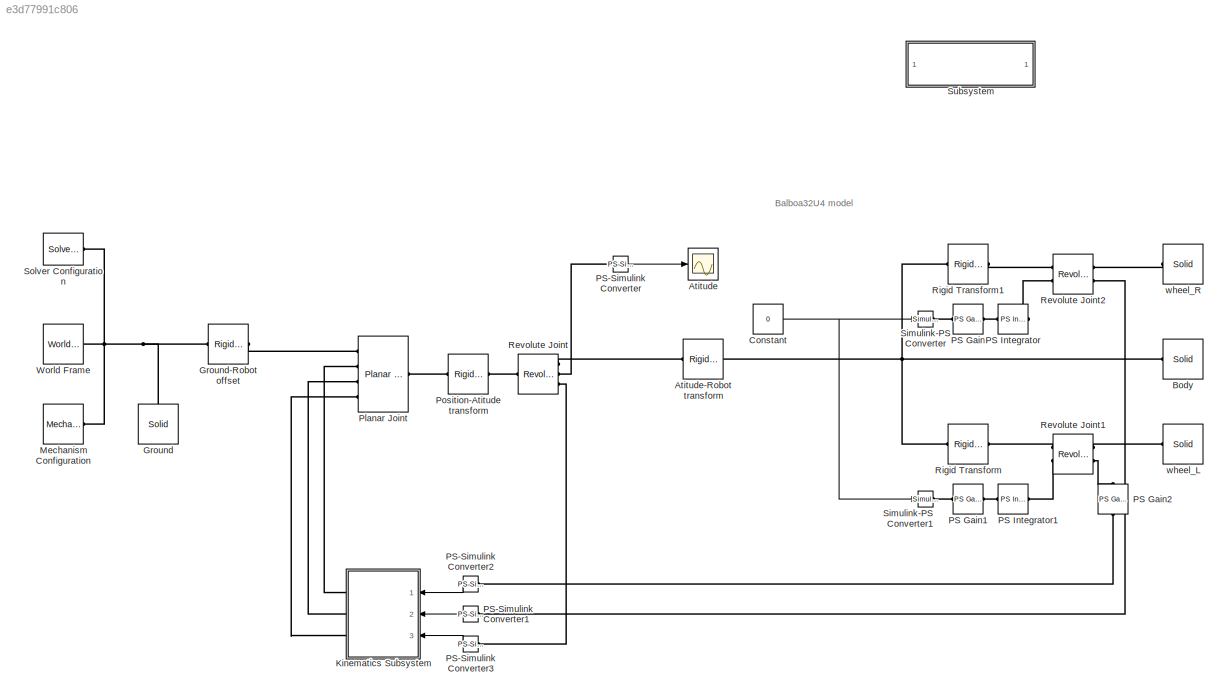
MODEL slx_e3d77991c806
KIND model
CONFIG AbsTol = auto
CONFIG EnableMultiTasking = on
CONFIG FixedStep = auto
CONFIG MaxStep = 0.001
CONFIG MinStep = auto
CONFIG RelTol = 1e-3
CONFIG SampleTimeConstraint = Unconstrained
CONFIG Solver = ode15s
CONFIG SolverName = ode15s
CONFIG StartTime = 0.0
CONFIG StopTime = 20
BLOCK [Scope] Atitude
  Floating = off
  NumInputPorts = 1
  Ports = [1]
  ScopeSpecificationString = Simulink.scopes.TimeScopeBlockCfg('CurrentConfiguration', extmgr.ConfigurationSet(extmgr.Configuration('Core','General UI',true),extmgr.Configuration('Core','Source UI',true),extmgr.Configuration('Sources','WiredSimulink',true,'DataLoggingVariableName','ScopeData2'),extmgr.Configuration('Visuals','Time Domain',true,'SerializedDisplays',{struct('MinYLimReal','-134.45235','MaxYLimReal','1210.07116',...<+1398ch>
BLOCK [Reference] Atitude-Robot transform  REF=sm_lib/Frames and
Transforms/Rigid
Transform
  Ports = [0, 0, 0, 0, 0, 1, 1]
  SourceBlock = sm_lib/Frames and\nTransforms/Rigid\nTransform
  SourceProductBaseCode = MS
  SourceProductName = Simscape Multibody
  SourceType = Rigid\nTransform
BLOCK [Reference] Body  REF=sm_lib/Body Elements/Solid
  Ports = [0, 0, 0, 0, 0, 0, 1]
  SourceBlock = sm_lib/Body Elements/Solid
  SourceProductBaseCode = MS
  SourceProductName = Simscape Multibody
  SourceType = Solid
BLOCK [Constant] Constant
  Value = 0
BLOCK [Reference] Ground  REF=sm_lib/Body Elements/Solid
  Ports = [0, 0, 0, 0, 0, 0, 1]
  SourceBlock = sm_lib/Body Elements/Solid
  SourceProductBaseCode = MS
  SourceProductName = Simscape Multibody
  SourceType = Solid
BLOCK [Reference] Ground-Robot offset  REF=sm_lib/Frames and
Transforms/Rigid
Transform
  Ports = [0, 0, 0, 0, 0, 1, 1]
  SourceBlock = sm_lib/Frames and\nTransforms/Rigid\nTransform
  SourceProductBaseCode = MS
  SourceProductName = Simscape Multibody
  SourceType = Rigid\nTransform
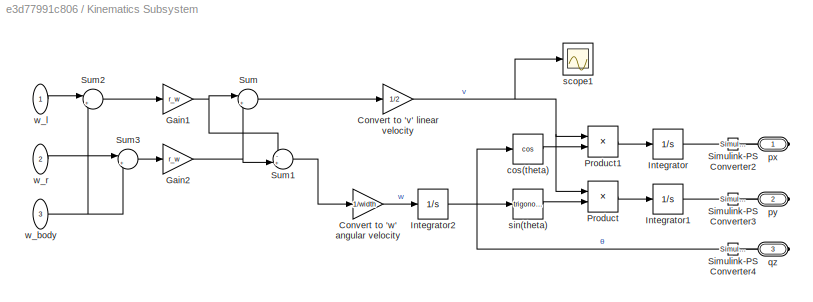
BLOCK [SubSystem] Kinematics Subsystem
  Ports = [3, 0, 0, 0, 0, 0, 3]
  RequestExecContextInheritance = off
BLOCK [Gain] Kinematics Subsystem/Convert to 'v' linear velocity
  Gain = 1/2
  OutDataTypeStr = Inherit: Inherit via internal rule
  ParamDataTypeStr = Inherit: Inherit via internal rule
  SaturateOnIntegerOverflow = off
BLOCK [Gain] Kinematics Subsystem/Convert to 'w' angular velocity
  Gain = 1/width
  OutDataTypeStr = Inherit: Inherit via internal rule
  ParamDataTypeStr = Inherit: Inherit via internal rule
  SaturateOnIntegerOverflow = off
BLOCK [Gain] Kinematics Subsystem/Gain1
  Gain = r_w
  OutDataTypeStr = Inherit: Inherit via internal rule
  ParamDataTypeStr = Inherit: Inherit via internal rule
  SaturateOnIntegerOverflow = off
BLOCK [Gain] Kinematics Subsystem/Gain2
  Gain = r_w
  OutDataTypeStr = Inherit: Inherit via internal rule
  ParamDataTypeStr = Inherit: Inherit via internal rule
  SaturateOnIntegerOverflow = off
BLOCK [Integrator] Kinematics Subsystem/Integrator
  Ports = [1, 1]
BLOCK [Integrator] Kinematics Subsystem/Integrator1
  Ports = [1, 1]
BLOCK [Integrator] Kinematics Subsystem/Integrator2
  Ports = [1, 1]
BLOCK [Product] Kinematics Subsystem/Product
  InputSameDT = off
  OutDataTypeStr = Inherit: Inherit via internal rule
  Ports = [2, 1]
  RndMeth = Floor
  SaturateOnIntegerOverflow = off
BLOCK [Product] Kinematics Subsystem/Product1
  InputSameDT = off
  OutDataTypeStr = Inherit: Inherit via internal rule
  Ports = [2, 1]
  RndMeth = Floor
  SaturateOnIntegerOverflow = off
BLOCK [Reference] Kinematics Subsystem/Simulink-PS Converter2  REF=nesl_utility/Simulink-PS
Converter
  Ports = [1, 0, 0, 0, 0, 0, 1]
  SourceBlock = nesl_utility/Simulink-PS\nConverter
  SourceProductBaseCode = SS
  SourceProductName = Simscape
  SourceType = Simulink-PS\nConverter
BLOCK [Reference] Kinematics Subsystem/Simulink-PS Converter3  REF=nesl_utility/Simulink-PS
Converter
  Ports = [1, 0, 0, 0, 0, 0, 1]
  SourceBlock = nesl_utility/Simulink-PS\nConverter
  SourceProductBaseCode = SS
  SourceProductName = Simscape
  SourceType = Simulink-PS\nConverter
BLOCK [Reference] Kinematics Subsystem/Simulink-PS Converter4  REF=nesl_utility/Simulink-PS
Converter
  Ports = [1, 0, 0, 0, 0, 0, 1]
  SourceBlock = nesl_utility/Simulink-PS\nConverter
  SourceProductBaseCode = SS
  SourceProductName = Simscape
  SourceType = Simulink-PS\nConverter
BLOCK [Sum] Kinematics Subsystem/Sum
  IconShape = round
  InputSameDT = off
  Inputs = |++
  OutDataTypeStr = Inherit: Inherit via internal rule
  Ports = [2, 1]
  SaturateOnIntegerOverflow = off
BLOCK [Sum] Kinematics Subsystem/Sum1
  IconShape = round
  InputSameDT = off
  Inputs = -+|
  OutDataTypeStr = Inherit: Inherit via internal rule
  Ports = [2, 1]
  SaturateOnIntegerOverflow = off
BLOCK [Sum] Kinematics Subsystem/Sum2
  IconShape = round
  InputSameDT = off
  Inputs = |++
  OutDataTypeStr = Inherit: Inherit via internal rule
  Ports = [2, 1]
  SaturateOnIntegerOverflow = off
BLOCK [Sum] Kinematics Subsystem/Sum3
  IconShape = round
  InputSameDT = off
  Inputs = |++
  OutDataTypeStr = Inherit: Inherit via internal rule
  Ports = [2, 1]
  SaturateOnIntegerOverflow = off
BLOCK [Trigonometry] Kinematics Subsystem/cos(theta)
  Operator = cos
  Ports = [1, 1]
BLOCK [PMIOPort] Kinematics Subsystem/px
  Side = Right
BLOCK [PMIOPort] Kinematics Subsystem/py
  Port = 2
  Side = Right
BLOCK [PMIOPort] Kinematics Subsystem/qz
  Port = 3
  Side = Right
BLOCK [Scope] Kinematics Subsystem/scope1
  Floating = off
  NumInputPorts = 1
  Ports = [1]
  ScopeSpecificationString = Simulink.scopes.TimeScopeBlockCfg('CurrentConfiguration', extmgr.ConfigurationSet(extmgr.Configuration('Core','General UI',true),extmgr.Configuration('Core','Source UI',true),extmgr.Configuration('Sources','WiredSimulink',true),extmgr.Configuration('Visuals','Time Domain',true,'SerializedDisplays',{struct('MinYLimReal','-111223169837.66995','MaxYLimReal','93654155959.9662','YLabelReal','','MinYLim...<+1475ch>
BLOCK [Trigonometry] Kinematics Subsystem/sin(theta)
  Ports = [1, 1]
BLOCK [Inport] Kinematics Subsystem/w_body
  IconDisplay = Port number
  Port = 3
BLOCK [Inport] Kinematics Subsystem/w_l
  IconDisplay = Port number
BLOCK [Inport] Kinematics Subsystem/w_r
  IconDisplay = Port number
  Port = 2
BLOCK [Reference] Mechanism Configuration  REF=sm_lib/Utilities/Mechanism
Configuration
  Ports = [0, 0, 0, 0, 0, 0, 1]
  SourceBlock = sm_lib/Utilities/Mechanism\nConfiguration
  SourceProductBaseCode = MS
  SourceProductName = Simscape Multibody
  SourceType = Mechanism\nConfiguration
BLOCK [Reference] PS Gain  REF=fl_lib/Physical Signals/Functions/PS Gain
  Ports = [0, 0, 0, 0, 0, 1, 1]
  SourceBlock = fl_lib/Physical Signals/Functions/PS Gain
  SourceProductBaseCode = SS
  SourceProductName = Simscape
  SourceType = PS Gain
BLOCK [Reference] PS Gain1  REF=fl_lib/Physical Signals/Functions/PS Gain
  Ports = [0, 0, 0, 0, 0, 1, 1]
  SourceBlock = fl_lib/Physical Signals/Functions/PS Gain
  SourceProductBaseCode = SS
  SourceProductName = Simscape
  SourceType = PS Gain
BLOCK [Reference] PS Gain2  REF=fl_lib/Physical Signals/Functions/PS Gain
  Ports = [0, 0, 0, 0, 0, 1, 1]
  SourceBlock = fl_lib/Physical Signals/Functions/PS Gain
  SourceProductBaseCode = SS
  SourceProductName = Simscape
  SourceType = PS Gain
BLOCK [Reference] PS Integrator  REF=fl_lib/Physical Signals/Linear Operators/PS Integrator
  Ports = [0, 0, 0, 0, 0, 1, 1]
  SourceBlock = fl_lib/Physical Signals/Linear Operators/PS Integrator
  SourceProductBaseCode = SS
  SourceProductName = Simscape
  SourceType = PS Integrator
BLOCK [Reference] PS Integrator1  REF=fl_lib/Physical Signals/Linear Operators/PS Integrator
  Ports = [0, 0, 0, 0, 0, 1, 1]
  SourceBlock = fl_lib/Physical Signals/Linear Operators/PS Integrator
  SourceProductBaseCode = SS
  SourceProductName = Simscape
  SourceType = PS Integrator
BLOCK [Reference] PS-Simulink Converter  REF=nesl_utility/PS-Simulink
Converter
  Ports = [0, 1, 0, 0, 0, 1]
  SourceBlock = nesl_utility/PS-Simulink\nConverter
  SourceProductBaseCode = SS
  SourceProductName = Simscape
  SourceType = PS-Simulink\nConverter
BLOCK [Reference] PS-Simulink Converter1  REF=nesl_utility/PS-Simulink
Converter
  Ports = [0, 1, 0, 0, 0, 1]
  SourceBlock = nesl_utility/PS-Simulink\nConverter
  SourceProductBaseCode = SS
  SourceProductName = Simscape
  SourceType = PS-Simulink\nConverter
BLOCK [Reference] PS-Simulink Converter2  REF=nesl_utility/PS-Simulink
Converter
  Ports = [0, 1, 0, 0, 0, 1]
  SourceBlock = nesl_utility/PS-Simulink\nConverter
  SourceProductBaseCode = SS
  SourceProductName = Simscape
  SourceType = PS-Simulink\nConverter
BLOCK [Reference] PS-Simulink Converter3  REF=nesl_utility/PS-Simulink
Converter
  Ports = [0, 1, 0, 0, 0, 1]
  SourceBlock = nesl_utility/PS-Simulink\nConverter
  SourceProductBaseCode = SS
  SourceProductName = Simscape
  SourceType = PS-Simulink\nConverter
BLOCK [Reference] Planar Joint  REF=sm_lib/Joints/Planar Joint
  Ports = [0, 0, 0, 0, 0, 4, 1]
  SourceBlock = sm_lib/Joints/Planar Joint
  SourceProductBaseCode = MS
  SourceProductName = Simscape Multibody
  SourceType = Planar Joint
BLOCK [Reference] Position-Atitude transform  REF=sm_lib/Frames and
Transforms/Rigid
Transform
  Ports = [0, 0, 0, 0, 0, 1, 1]
  SourceBlock = sm_lib/Frames and\nTransforms/Rigid\nTransform
  SourceProductBaseCode = MS
  SourceProductName = Simscape Multibody
  SourceType = Rigid\nTransform
BLOCK [Reference] Revolute Joint  REF=sm_lib/Joints/Revolute Joint
  Ports = [0, 0, 0, 0, 0, 1, 3]
  SourceBlock = sm_lib/Joints/Revolute Joint
  SourceProductBaseCode = MS
  SourceProductName = Simscape Multibody
  SourceType = Revolute Joint
BLOCK [Reference] Revolute Joint1  REF=sm_lib/Joints/Revolute Joint
  Ports = [0, 0, 0, 0, 0, 2, 2]
  SourceBlock = sm_lib/Joints/Revolute Joint
  SourceProductBaseCode = MS
  SourceProductName = Simscape Multibody
  SourceType = Revolute Joint
BLOCK [Reference] Revolute Joint2  REF=sm_lib/Joints/Revolute Joint
  Ports = [0, 0, 0, 0, 0, 2, 2]
  SourceBlock = sm_lib/Joints/Revolute Joint
  SourceProductBaseCode = MS
  SourceProductName = Simscape Multibody
  SourceType = Revolute Joint
BLOCK [Reference] Rigid Transform  REF=sm_lib/Frames and
Transforms/Rigid
Transform
  Ports = [0, 0, 0, 0, 0, 1, 1]
  SourceBlock = sm_lib/Frames and\nTransforms/Rigid\nTransform
  SourceProductBaseCode = MS
  SourceProductName = Simscape Multibody
  SourceType = Rigid\nTransform
BLOCK [Reference] Rigid Transform1  REF=sm_lib/Frames and
Transforms/Rigid
Transform
  Ports = [0, 0, 0, 0, 0, 1, 1]
  SourceBlock = sm_lib/Frames and\nTransforms/Rigid\nTransform
  SourceProductBaseCode = MS
  SourceProductName = Simscape Multibody
  SourceType = Rigid\nTransform
BLOCK [Reference] Simulink-PS Converter  REF=nesl_utility/Simulink-PS
Converter
  Ports = [1, 0, 0, 0, 0, 0, 1]
  SourceBlock = nesl_utility/Simulink-PS\nConverter
  SourceProductBaseCode = SS
  SourceProductName = Simscape
  SourceType = Simulink-PS\nConverter
BLOCK [Reference] Simulink-PS Converter1  REF=nesl_utility/Simulink-PS
Converter
  Ports = [1, 0, 0, 0, 0, 0, 1]
  SourceBlock = nesl_utility/Simulink-PS\nConverter
  SourceProductBaseCode = SS
  SourceProductName = Simscape
  SourceType = Simulink-PS\nConverter
BLOCK [Reference] Solver Configuration  REF=nesl_utility/Solver
Configuration
  Ports = [0, 0, 0, 0, 0, 0, 1]
  SourceBlock = nesl_utility/Solver\nConfiguration
  SourceProductBaseCode = SS
  SourceProductName = Simscape
  SourceType = Solver\nConfiguration
BLOCK [SubSystem] Subsystem
  OpenFcn = open_system('sm_lib')
  Ports = []
  RequestExecContextInheritance = off
  ShowPortLabels = none
BLOCK [Reference] World Frame  REF=sm_lib/Frames and
Transforms/World Frame
  Ports = [0, 0, 0, 0, 0, 0, 1]
  SourceBlock = sm_lib/Frames and\nTransforms/World Frame
  SourceProductBaseCode = MS
  SourceProductName = Simscape Multibody
  SourceType = World Frame
BLOCK [Reference] wheel_L  REF=sm_lib/Body Elements/Solid
  Ports = [0, 0, 0, 0, 0, 0, 1]
  SourceBlock = sm_lib/Body Elements/Solid
  SourceProductBaseCode = MS
  SourceProductName = Simscape Multibody
  SourceType = Solid
BLOCK [Reference] wheel_R  REF=sm_lib/Body Elements/Solid
  Ports = [0, 0, 0, 0, 0, 0, 1]
  SourceBlock = sm_lib/Body Elements/Solid
  SourceProductBaseCode = MS
  SourceProductName = Simscape Multibody
  SourceType = Solid
ANNOTATION (root): Balboa32U4 model
NET Constant:1 -> Simulink-PS Converter1:1, Simulink-PS Converter:1
NET Kinematics Subsystem/Convert to 'v' linear velocity:1 -> Kinematics Subsystem/Product1:1, Kinematics Subsystem/Product:1, Kinematics Subsystem/scope1:1
LINE Kinematics Subsystem/Convert to 'w' angular velocity:1 -> Kinematics Subsystem/Integrator2:1
NET Kinematics Subsystem/Gain1:1 -> Kinematics Subsystem/Sum1:1, Kinematics Subsystem/Sum:1
NET Kinematics Subsystem/Gain2:1 -> Kinematics Subsystem/Sum1:2, Kinematics Subsystem/Sum:2
LINE Kinematics Subsystem/Integrator1:1 -> Kinematics Subsystem/Simulink-PS Converter3:1
NET Kinematics Subsystem/Integrator2:1 -> Kinematics Subsystem/Simulink-PS Converter4:1, Kinematics Subsystem/cos(theta):1, Kinematics Subsystem/sin(theta):1
LINE Kinematics Subsystem/Integrator:1 -> Kinematics Subsystem/Simulink-PS Converter2:1
LINE Kinematics Subsystem/Product1:1 -> Kinematics Subsystem/Integrator:1
LINE Kinematics Subsystem/Product:1 -> Kinematics Subsystem/Integrator1:1
LINE Kinematics Subsystem/Sum1:1 -> Kinematics Subsystem/Convert to 'w' angular velocity:1
LINE Kinematics Subsystem/Sum2:1 -> Kinematics Subsystem/Gain1:1
LINE Kinematics Subsystem/Sum3:1 -> Kinematics Subsystem/Gain2:1
LINE Kinematics Subsystem/Sum:1 -> Kinematics Subsystem/Convert to 'v' linear velocity:1
LINE Kinematics Subsystem/cos(theta):1 -> Kinematics Subsystem/Product1:2
LINE Kinematics Subsystem/sin(theta):1 -> Kinematics Subsystem/Product:2
NET Kinematics Subsystem/w_body:1 -> Kinematics Subsystem/Sum2:2, Kinematics Subsystem/Sum3:2
LINE Kinematics Subsystem/w_l:1 -> Kinematics Subsystem/Sum2:1
LINE Kinematics Subsystem/w_r:1 -> Kinematics Subsystem/Sum3:1
LINE PS-Simulink Converter1:1 -> Kinematics Subsystem:2
LINE PS-Simulink Converter2:1 -> Kinematics Subsystem:1
LINE PS-Simulink Converter3:1 -> Kinematics Subsystem:3
LINE PS-Simulink Converter:1 -> Atitude:1
PLINE Atitude-Robot transform:LConn1 -- Revolute Joint:RConn1
PNET net1: Atitude-Robot transform:RConn1 -- Body:RConn1 -- Rigid Transform1:LConn1 -- Rigid Transform:LConn1
PNET net2: Ground-Robot offset:LConn1 -- Ground:RConn1 -- Mechanism Configuration:RConn1 -- Solver Configuration:RConn1 -- World Frame:RConn1
PLINE Ground-Robot offset:RConn1 -- Planar Joint:LConn1
PLINE Kinematics Subsystem/Simulink-PS Converter2:RConn1 -- Kinematics Subsystem/px:RConn1
PLINE Kinematics Subsystem/Simulink-PS Converter3:RConn1 -- Kinematics Subsystem/py:RConn1
PLINE Kinematics Subsystem/Simulink-PS Converter4:RConn1 -- Kinematics Subsystem/qz:RConn1
PLINE Kinematics Subsystem:RConn1 -- Planar Joint:LConn2
PLINE Kinematics Subsystem:RConn2 -- Planar Joint:LConn3
PLINE Kinematics Subsystem:RConn3 -- Planar Joint:LConn4
PLINE PS Gain1:LConn1 -- Simulink-PS Converter1:RConn1
PLINE PS Gain1:RConn1 -- PS Integrator1:LConn1
PLINE PS Gain2:LConn1 -- Revolute Joint1:RConn2
PLINE PS Gain2:RConn1 -- PS-Simulink Converter2:LConn1
PLINE PS Gain:LConn1 -- Simulink-PS Converter:RConn1
PLINE PS Gain:RConn1 -- PS Integrator:LConn1
PLINE PS Integrator1:RConn1 -- Revolute Joint1:LConn2
PLINE PS Integrator:RConn1 -- Revolute Joint2:LConn2
PLINE PS-Simulink Converter1:LConn1 -- Revolute Joint2:RConn2
PLINE PS-Simulink Converter3:LConn1 -- Revolute Joint:RConn3
PLINE PS-Simulink Converter:LConn1 -- Revolute Joint:RConn2
PLINE Planar Joint:RConn1 -- Position-Atitude transform:LConn1
PLINE Position-Atitude transform:RConn1 -- Revolute Joint:LConn1
PLINE Revolute Joint1:LConn1 -- Rigid Transform:RConn1
PLINE Revolute Joint1:RConn1 -- wheel_L:RConn1
PLINE Revolute Joint2:LConn1 -- Rigid Transform1:RConn1
PLINE Revolute Joint2:RConn1 -- wheel_R:RConn1
note: NET lines group one-source signal fan-out (src -> all destinations, sorted); 1:1 wires keep LINE; PNET lines group multi-terminal physical nets as a canonical sorted terminal list (undirected conserving connections); 2-terminal nets keep the pairwise PLINE form
